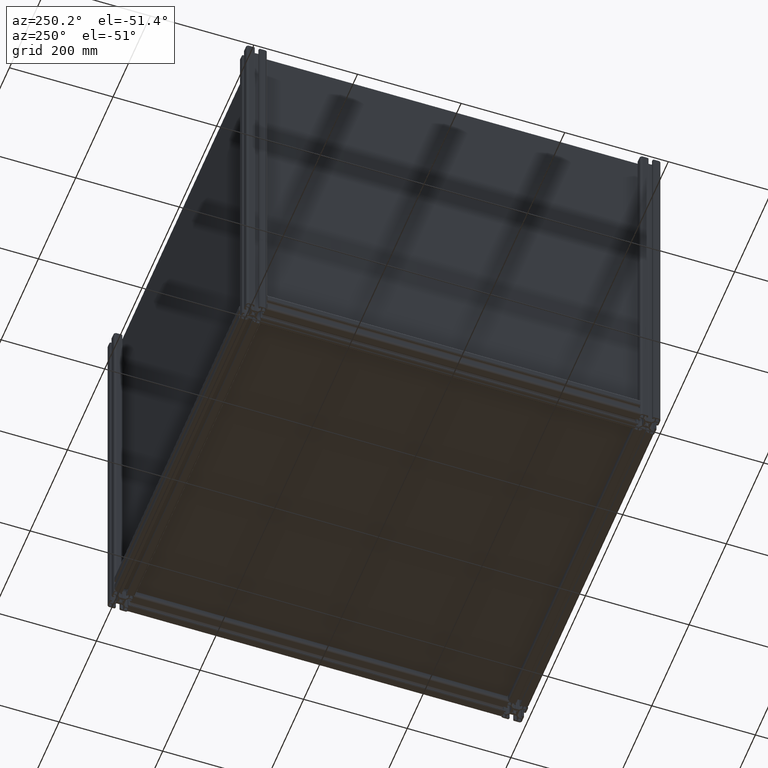
[diagram: clean part render]
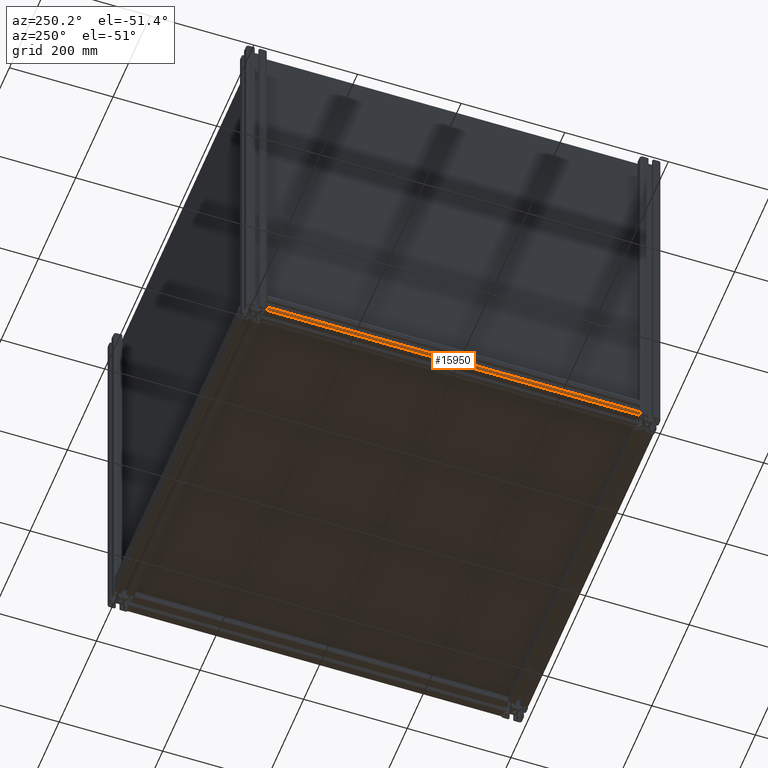
[diagram: same view with one face highlighted and labeled with its STEP entity id]
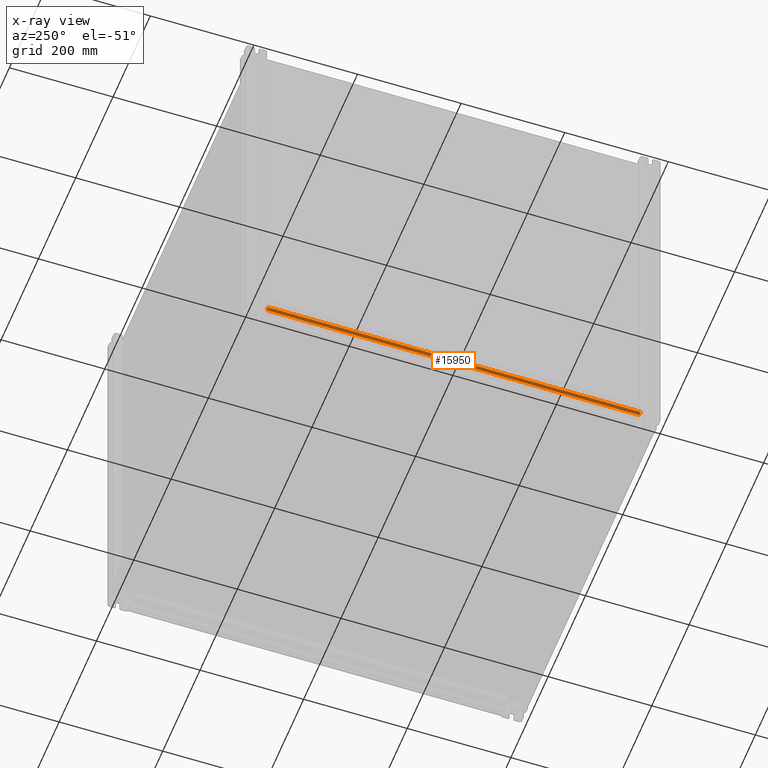
[diagram: x-ray of the same camera — body ghosted, the highlighted face saturated]
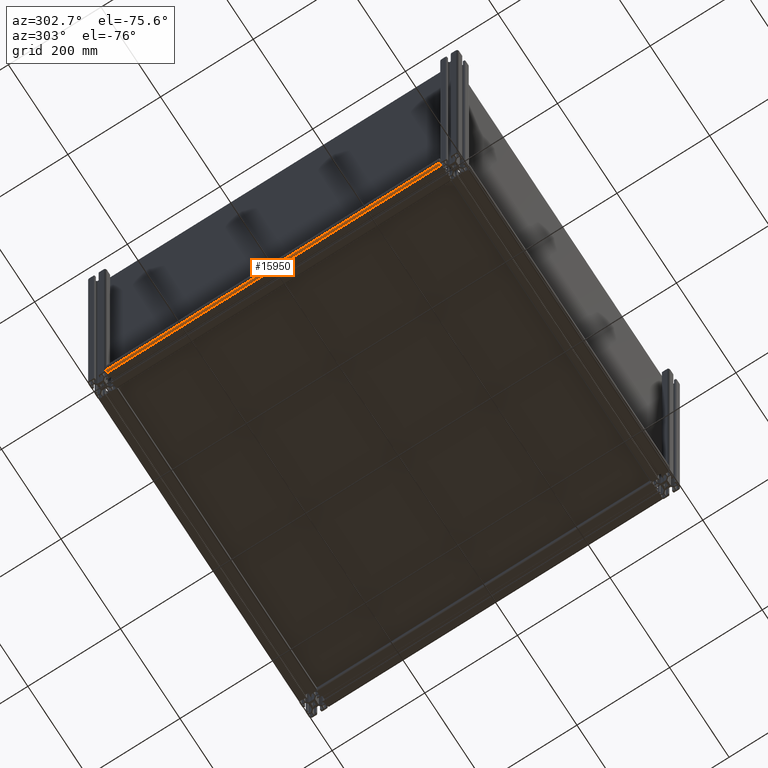
[diagram: same view with one face highlighted and labeled with its STEP entity id]
A machine part, auxiliary view. The second image highlights one B-rep face of the part: STEP entity #15950.
The next image is the same camera in x-ray: the body ghosted, the highlighted face saturated — about 0% of this face is hidden behind the body in this view.
A second angle (auxiliary view) of the same face is appended — the face is thin or edge-on in the first view.
In plain terms, the highlighted cylindrical surface (edge-blend (fillet) strip) has radius 4.5 mm, axis along (0, 1, 0).
Its self-contained STEP definition (entity closure, byte-faithful):
#96 = DIRECTION ( 'NONE',  ( -1.000000000000000000, 0.000000000000000000, 0.000000000000000000 ) ) ;
#294 = LINE ( 'NONE', #9314, #5740 ) ;
#527 = VERTEX_POINT ( 'NONE', #5327 ) ;
#1283 = VERTEX_POINT ( 'NONE', #2218 ) ;
#2218 = CARTESIAN_POINT ( 'NONE',  ( -15.50000000000309974, -19.99999999999840128, 720.0000000000000000 ) ) ;
#2644 = EDGE_LOOP ( 'NONE', ( #6527, #9067, #7569, #5041 ) ) ;
#2696 = AXIS2_PLACEMENT_3D ( 'NONE', #14386, #9327, #5191 ) ;
#3407 = EDGE_CURVE ( 'NONE', #9816, #12333, #4268, .T. ) ;
#4051 = DIRECTION ( 'NONE',  ( -1.000000000000000000, 0.000000000000000000, 0.000000000000000000 ) ) ;
#4211 = EDGE_CURVE ( 'NONE', #527, #1283, #294, .T. ) ;
#4268 = LINE ( 'NONE', #6019, #15072 ) ;
#5041 = ORIENTED_EDGE ( 'NONE', *, *, #3407, .T. ) ;
#5191 = DIRECTION ( 'NONE',  ( -1.000000000000000000, 0.000000000000000000, 0.000000000000000000 ) ) ;
#5327 = CARTESIAN_POINT ( 'NONE',  ( -15.50000000000309974, -19.99999999999819877, 0.000000000000000000 ) ) ;
#5399 = DIRECTION ( 'NONE',  ( 0.000000000000000000, 0.000000000000000000, 1.000000000000000000 ) ) ;
#5740 = VECTOR ( 'NONE', #5399, 1000.000000000000000 ) ;
#6019 = CARTESIAN_POINT ( 'NONE',  ( -20.00000000000089884, -15.50000000000129852, 720.0000000000000000 ) ) ;
#6255 = AXIS2_PLACEMENT_3D ( 'NONE', #11141, #16296, #4051 ) ;
#6527 = ORIENTED_EDGE ( 'NONE', *, *, #7487, .T. ) ;
#7358 = CIRCLE ( 'NONE', #8024, 4.499999999997806199 ) ;
#7487 = EDGE_CURVE ( 'NONE', #12333, #527, #14980, .T. ) ;
#7569 = ORIENTED_EDGE ( 'NONE', *, *, #9831, .F. ) ;
#8024 = AXIS2_PLACEMENT_3D ( 'NONE', #14225, #13260, #96 ) ;
#8093 = CYLINDRICAL_SURFACE ( 'NONE', #6255, 4.499999999997806199 ) ;
#9067 = ORIENTED_EDGE ( 'NONE', *, *, #4211, .T. ) ;
#9314 = CARTESIAN_POINT ( 'NONE',  ( -15.50000000000309974, -19.99999999999819877, 720.0000000000000000 ) ) ;
#9327 = DIRECTION ( 'NONE',  ( 0.000000000000000000, 0.000000000000000000, 1.000000000000000000 ) ) ;
#9775 = DIRECTION ( 'NONE',  ( 0.000000000000000000, 0.000000000000000000, -1.000000000000000000 ) ) ;
#9816 = VERTEX_POINT ( 'NONE', #15208 ) ;
#9831 = EDGE_CURVE ( 'NONE', #9816, #1283, #7358, .T. ) ;
#10709 = CARTESIAN_POINT ( 'NONE',  ( -20.00000000000135003, -15.50000000000129852, 0.000000000000000000 ) ) ;
#11141 = CARTESIAN_POINT ( 'NONE',  ( -15.50000000000309974, -15.50000000000129852, 720.0000000000000000 ) ) ;
#12333 = VERTEX_POINT ( 'NONE', #10709 ) ;
#13260 = DIRECTION ( 'NONE',  ( 0.000000000000000000, 0.000000000000000000, 1.000000000000000000 ) ) ;
#13694 = FACE_OUTER_BOUND ( 'NONE', #2644, .T. ) ;
#14225 = CARTESIAN_POINT ( 'NONE',  ( -15.50000000000309974, -15.50000000000129852, 720.0000000000000000 ) ) ;
#14386 = CARTESIAN_POINT ( 'NONE',  ( -15.50000000000309974, -15.50000000000129852, 0.000000000000000000 ) ) ;
#14980 = CIRCLE ( 'NONE', #2696, 4.499999999997806199 ) ;
#15072 = VECTOR ( 'NONE', #9775, 1000.000000000000000 ) ;
#15208 = CARTESIAN_POINT ( 'NONE',  ( -20.00000000000135003, -15.50000000000129852, 720.0000000000000000 ) ) ;
#15950 = ADVANCED_FACE ( 'NONE', ( #13694 ), #8093, .T. ) ;
#16296 = DIRECTION ( 'NONE',  ( 0.000000000000000000, 0.000000000000000000, -1.000000000000000000 ) ) ;